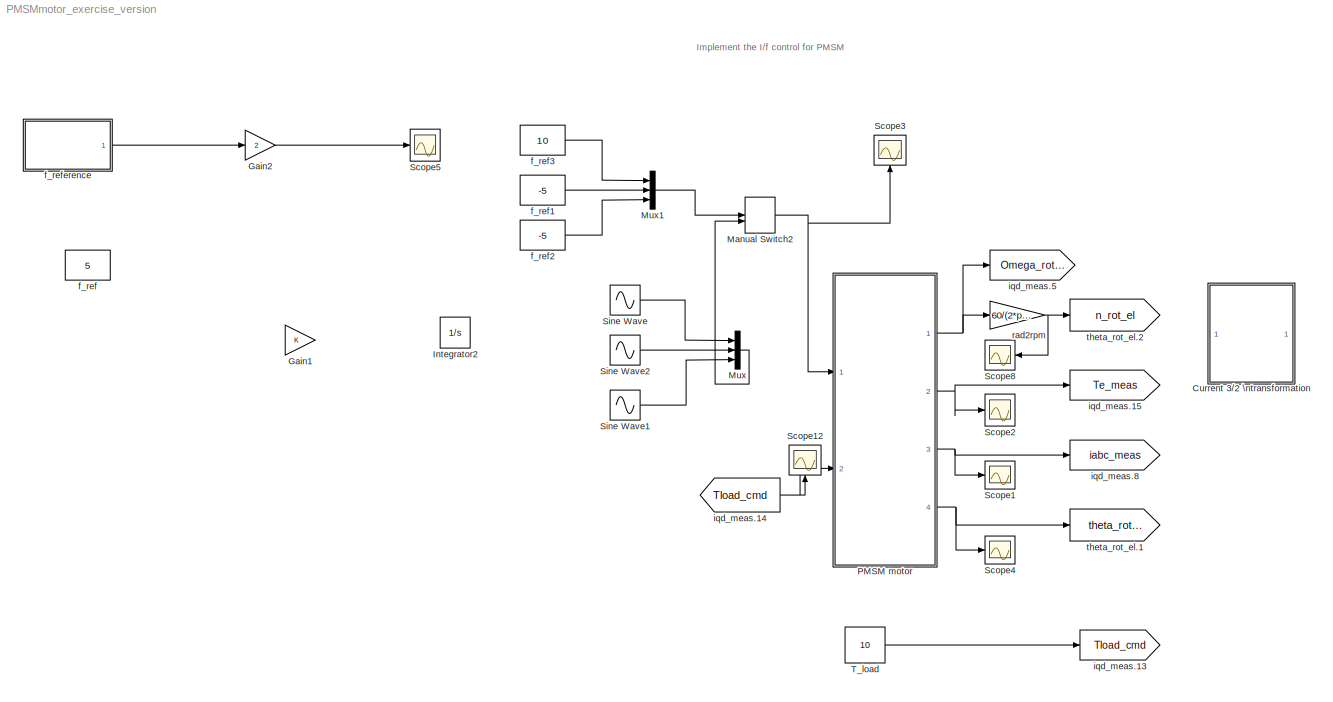
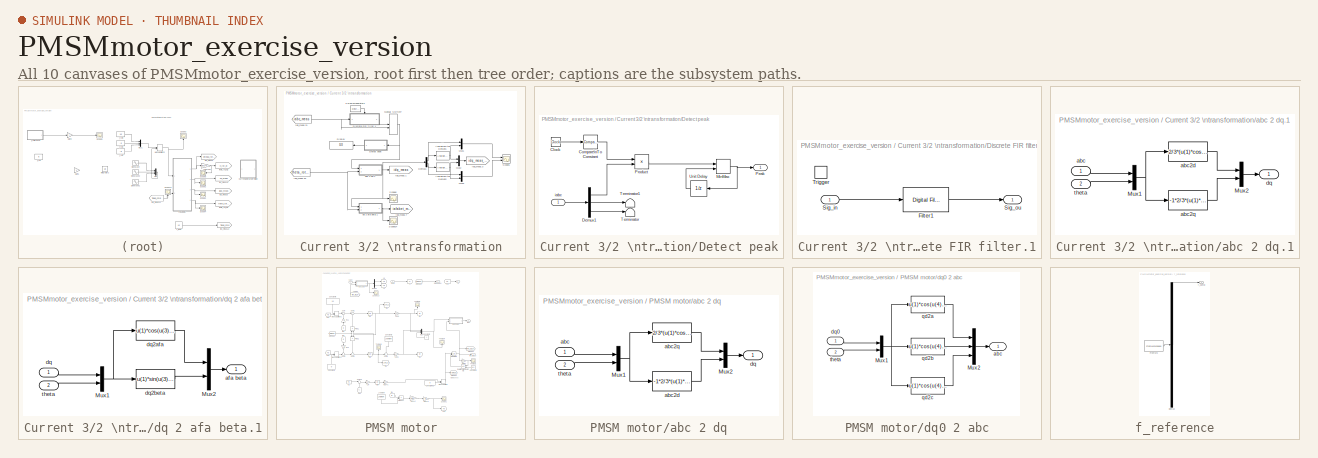
[diagram: thumbnail index - all 10 canvases of the model, root first then tree order]
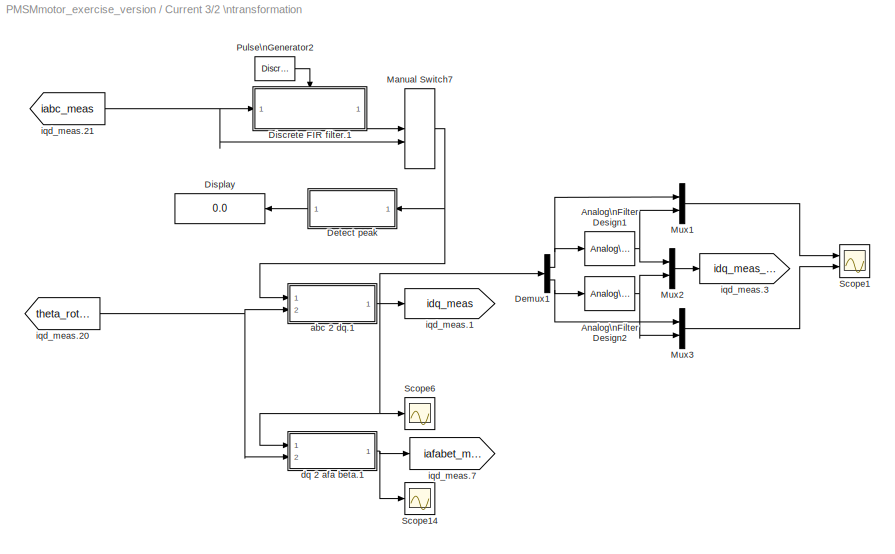
MODEL PMSMmotor_exercise_version
KIND model
CONFIG InitFcn = Motor_parameters_Lsrpm7fw
BLOCK [SubSystem] Current 3//2 \ntransformation
  FunctionWithSeparateData = off
  MaskHideContents = off
  MinAlgLoopOccurrences = off
  Opaque = off
  Ports = []
  PropExecContextOutsideSubsystem = off
  RTWSystemCode = Auto
  RequestExecContextInheritance = off
  SID = 7
BLOCK [Reference] Current 3//2 \ntransformation/Analog\nFilter Design1  REF=dsparch4/Analog\nFilter Design
  N = 5
  Ports = [1, 1]
  Rp = 2
  Rs = 40
  SID = 8
  SourceBlock = dsparch4/Analog\nFilter Design
  SourceType = Analog Filter Design
  Whi = 80
  Wlo = 2*pi*400
  filttype = Lowpass
  method = Butterworth
BLOCK [Reference] Current 3//2 \ntransformation/Analog\nFilter Design2  REF=dsparch4/Analog\nFilter Design
  N = 5
  Ports = [1, 1]
  Rp = 2
  Rs = 40
  SID = 9
  SourceBlock = dsparch4/Analog\nFilter Design
  SourceType = Analog Filter Design
  Whi = 80
  Wlo = 2*pi*400
  filttype = Lowpass
  method = Butterworth
BLOCK [Demux] Current 3//2 \ntransformation/Demux1
  DisplayOption = bar
  Outputs = 2
  Ports = [1, 2]
  SID = 10
BLOCK [SubSystem] Current 3//2 \ntransformation/Detect peak
  FunctionWithSeparateData = off
  MaskHideContents = off
  MinAlgLoopOccurrences = off
  Opaque = off
  Ports = [1, 1]
  PropExecContextOutsideSubsystem = off
  RTWSystemCode = Auto
  RequestExecContextInheritance = off
  SID = 11
BLOCK [Clock] Current 3//2 \ntransformation/Detect peak/Clock
  SID = 13
BLOCK [Reference] Current 3//2 \ntransformation/Detect peak/Compare\nTo Constant  REF=simulink/Logic and Bit\nOperations/Compare\nTo Constant
  OutDataTypeStr = uint8
  Ports = [1, 1]
  SID = 14
  SourceBlock = simulink/Logic and Bit\nOperations/Compare\nTo Constant
  SourceType = Compare To Constant
  ZeroCross = off
  const = 9.5
  relop = >=
BLOCK [Demux] Current 3//2 \ntransformation/Detect peak/Demux1
  DisplayOption = bar
  Outputs = 3
  Ports = [1, 3]
  SID = 15
BLOCK [MinMax] Current 3//2 \ntransformation/Detect peak/MinMax
  Function = max
  InputSameDT = off
  Inputs = 2
  Ports = [2, 1]
  SID = 16
  SaturateOnIntegerOverflow = off
BLOCK [Outport] Current 3//2 \ntransformation/Detect peak/Peak
  IconDisplay = Port number
  SID = 21
BLOCK [Product] Current 3//2 \ntransformation/Detect peak/Product
  InputSameDT = off
  OutDataTypeStr = Inherit: Inherit via internal rule
  Ports = [2, 1]
  SID = 17
  SaturateOnIntegerOverflow = off
BLOCK [Terminator] Current 3//2 \ntransformation/Detect peak/Terminator
  SID = 18
BLOCK [Terminator] Current 3//2 \ntransformation/Detect peak/Terminator1
  SID = 19
BLOCK [UnitDelay] Current 3//2 \ntransformation/Detect peak/Unit Delay
  SID = 20
  SampleTime = 1/5e3
BLOCK [Inport] Current 3//2 \ntransformation/Detect peak/iabc
  IconDisplay = Port number
  SID = 12
BLOCK [SubSystem] Current 3//2 \ntransformation/Discrete FIR filter.1
  FunctionWithSeparateData = off
  MaskHideContents = off
  MinAlgLoopOccurrences = off
  Opaque = off
  Ports = [1, 1, 0, 1]
  PropExecContextOutsideSubsystem = off
  RTWSystemCode = Auto
  RequestExecContextInheritance = off
  SID = 22
BLOCK [Reference] Current 3//2 \ntransformation/Discrete FIR filter.1/Filter1  REF=dsparch4/Digital Filter
  AllPoleFiltStruct = Direct form
  BiQuadCoeffs = [1 0.3 0.4 1 0.1 0.2]
  CoeffSource = Specify via dialog
  DenCoeffs = [1 0.1]
  FIRFiltStruct = Direct form
  FiltPerSampPopup = One filter per frame
  FilterSource = Specify via dialog
  IC = 0
  ICden = 0
  ICnum = 0
  IIRFiltStruct = Direct form II transposed
  InputProcessing = Inherited (this choice will be removed - see release notes)
  LatticeCoeffs = [0.2 0.4]
  LockScale = off
  NumCoeffs = [0.0129982054114534 -0.101337899103369 0.58834244300993 0.58834244300993 -0.101337899103369 0.0129982054114534]
  Ports = [1, 1]
  SID = 25
  ScaleValues = 1
  SourceBlock = dsparch4/Digital Filter
  SourceType = Digital Filter
  Tag = BlockMethodSubSystem
  TypePopup = FIR (all zeros)
  UserData = DataTag0
  UserDataPersistent = on
  accumFracLength = 30
  accumMode = Same as product output
  accumWordLength = 32
  additionalParams = off
  allowOverrides = on
  denIgnore = on
  dfiltObjectName = dfilt.dffir([1 2 1])
  firstCoeffFracLength = 15
  firstCoeffMode = Same word length as input
  firstCoeffWordLength = 16
  memoryFracLength = 15
  memoryMode = Same as accumulator
  memoryWordLength = 16
  multiplicandFracLength = 30
  multiplicandMode = Same as output
  multiplicandWordLength = 32
  outputFracLength = 15
  outputMode = Same as accumulator
  outputWordLength = 16
  overflowMode = off
  prodOutputFracLength = 30
  prodOutputMode = Same as input
  prodOutputWordLength = 32
  roundingMode = Floor
  scaleValueFracLength = 14
  secondCoeffFracLength = 15
  secondCoeffMode = Same as numerator
  secondCoeffWordLength = 16
  showAcc = off
  showCoeff = off
  showMem = off
  showMpy = off
  showOut = off
  stageIOMode = Same as input
  stageIOWordLength = 16
  stageInFracLength = 15
  stageOutFracLength = 15
  tapSumFracLength = 30
  tapSumMode = Same as input
  tapSumWordLength = 32
  thirdCoeffFracLength = 15
  thirdCoeffMode = Same as input
  thirdCoeffWordLength = 16
BLOCK [Inport] Current 3//2 \ntransformation/Discrete FIR filter.1/Sig_in
  IconDisplay = Port number
  SID = 23
BLOCK [Outport] Current 3//2 \ntransformation/Discrete FIR filter.1/Sig_ou
  IconDisplay = Port number
  SID = 26
BLOCK [TriggerPort] Current 3//2 \ntransformation/Discrete FIR filter.1/Trigger
  Ports = []
  SID = 24
  StatesWhenEnabling = held
BLOCK [Display] Current 3//2 \ntransformation/Display
  Decimation = 1
  Ports = [1]
  SID = 27
BLOCK [ManualSwitch] Current 3//2 \ntransformation/Manual Switch7
  CurrentSetting = 0
  SID = 28
BLOCK [Mux] Current 3//2 \ntransformation/Mux1
  DisplayOption = bar
  Inputs = 2
  Ports = [2, 1]
  SID = 29
BLOCK [Mux] Current 3//2 \ntransformation/Mux2
  DisplayOption = bar
  Inputs = 2
  Ports = [2, 1]
  SID = 30
BLOCK [Mux] Current 3//2 \ntransformation/Mux3
  DisplayOption = bar
  Inputs = 2
  Ports = [2, 1]
  SID = 31
BLOCK [DiscretePulseGenerator] Current 3//2 \ntransformation/Pulse\nGenerator2
  Period = 1/fs
  PhaseDelay = 1/fs/4*0
  Ports = [0, 1]
  PulseType = Time based
  PulseWidth = 50
  SID = 32
BLOCK [Scope] Current 3//2 \ntransformation/Scope1
  DataFormat = StructureWithTime
  Floating = off
  LimitDataPoints = off
  NumInputPorts = 2
  Ports = [2]
  SID = 33
  SampleTime = 0
  SaveName = ScopeData40
  ShowLegends = off
  YMax = 5500~5
  YMin = -5500~-5
  ZoomMode = xonly
BLOCK [Scope] Current 3//2 \ntransformation/Scope14
  DataFormat = StructureWithTime
  Floating = off
  LimitDataPoints = off
  NumInputPorts = 1
  Ports = [1]
  SID = 34
  SampleTime = 0
  SaveName = ScopeData27
  ShowLegends = off
  YMax = 5500
  YMin = -5500
BLOCK [Scope] Current 3//2 \ntransformation/Scope6
  DataFormat = StructureWithTime
  Floating = off
  LimitDataPoints = off
  NumInputPorts = 1
  Ports = [1]
  SID = 35
  SampleTime = 0
  SaveName = ScopeData25
  ShowLegends = off
  ZoomMode = xonly
BLOCK [SubSystem] Current 3//2 \ntransformation/abc 2 dq.1
  FunctionWithSeparateData = off
  MaskHideContents = off
  MinAlgLoopOccurrences = off
  Opaque = off
  Ports = [2, 1]
  PropExecContextOutsideSubsystem = off
  RTWSystemCode = Auto
  RequestExecContextInheritance = off
  SID = 38
BLOCK [Mux] Current 3//2 \ntransformation/abc 2 dq.1/Mux1
  DisplayOption = bar
  Inputs = 2
  Ports = [2, 1]
  SID = 41
BLOCK [Mux] Current 3//2 \ntransformation/abc 2 dq.1/Mux2
  DisplayOption = bar
  Inputs = 2
  Ports = [2, 1]
  SID = 42
BLOCK [Inport] Current 3//2 \ntransformation/abc 2 dq.1/abc
  IconDisplay = Port number
  SID = 39
BLOCK [Fcn] Current 3//2 \ntransformation/abc 2 dq.1/abc2d
  Expr = 2/3*(u(1)*cos(u(4))+u(2)*cos(u(4)-2*pi/3)+u(3)*cos(u(4)-4*pi/3))
  SID = 43
BLOCK [Fcn] Current 3//2 \ntransformation/abc 2 dq.1/abc2q
  Expr = -1*2/3*(u(1)*sin(u(4))+u(2)*sin(u(4)-2*pi/3)+u(3)*sin(u(4)-4*pi/3))
  SID = 44
BLOCK [Outport] Current 3//2 \ntransformation/abc 2 dq.1/dq
  IconDisplay = Port number
  SID = 45
BLOCK [Inport] Current 3//2 \ntransformation/abc 2 dq.1/theta
  IconDisplay = Port number
  Port = 2
  SID = 40
BLOCK [SubSystem] Current 3//2 \ntransformation/dq 2 afa beta.1
  FunctionWithSeparateData = off
  MaskHideContents = off
  MinAlgLoopOccurrences = off
  Opaque = off
  Ports = [2, 1]
  PropExecContextOutsideSubsystem = off
  RTWSystemCode = Auto
  RequestExecContextInheritance = off
  SID = 46
BLOCK [Mux] Current 3//2 \ntransformation/dq 2 afa beta.1/Mux1
  DisplayOption = bar
  Inputs = 2
  Ports = [2, 1]
  SID = 49
BLOCK [Mux] Current 3//2 \ntransformation/dq 2 afa beta.1/Mux2
  DisplayOption = bar
  Inputs = 2
  Ports = [2, 1]
  SID = 50
BLOCK [Outport] Current 3//2 \ntransformation/dq 2 afa beta.1/afa beta
  IconDisplay = Port number
  SID = 53
BLOCK [Inport] Current 3//2 \ntransformation/dq 2 afa beta.1/dq
  IconDisplay = Port number
  SID = 47
BLOCK [Fcn] Current 3//2 \ntransformation/dq 2 afa beta.1/dq2afa
  Expr = u(1)*cos(u(3))-u(2)*sin(u(3))
  SID = 51
BLOCK [Fcn] Current 3//2 \ntransformation/dq 2 afa beta.1/dq2beta
  Expr = u(1)*sin(u(3))+u(2)*cos(u(3))
  SID = 52
BLOCK [Inport] Current 3//2 \ntransformation/dq 2 afa beta.1/theta
  IconDisplay = Port number
  Port = 2
  SID = 48
BLOCK [Goto] Current 3//2 \ntransformation/iqd_meas.1
  GotoTag = idq_meas
  SID = 54
  TagVisibility = global
BLOCK [From] Current 3//2 \ntransformation/iqd_meas.20
  CloseFcn = tagdialog Close
  GotoTag = theta_rot_el
  SID = 55
  TagVisibility = global
BLOCK [From] Current 3//2 \ntransformation/iqd_meas.21
  CloseFcn = tagdialog Close
  GotoTag = iabc_meas
  SID = 56
  TagVisibility = global
BLOCK [Goto] Current 3//2 \ntransformation/iqd_meas.3
  GotoTag = idq_meas_fil
  SID = 57
  TagVisibility = global
BLOCK [Goto] Current 3//2 \ntransformation/iqd_meas.7
  GotoTag = iafabet_meas
  SID = 58
  TagVisibility = global
BLOCK [Gain] Gain1
  OutDataTypeStr = Inherit: Inherit via internal rule
  ParamDataTypeStr = Inherit: Inherit via internal rule
  SID = 6258
  SaturateOnIntegerOverflow = off
BLOCK [Gain] Gain2
  Gain = 2
  OutDataTypeStr = Inherit: Inherit via internal rule
  ParamDataTypeStr = Inherit: Inherit via internal rule
  SID = 6259
  SaturateOnIntegerOverflow = off
BLOCK [Integrator] Integrator2
  ExternalReset = rising
  LimitOutput = on
  Ports = [2, 1]
  SID = 6267
  UpperSaturationLimit = 2
BLOCK [ManualSwitch] Manual Switch2
  SID = 6251
BLOCK [Mux] Mux
  DisplayOption = bar
  Inputs = 3
  Ports = [3, 1]
  SID = 6211
BLOCK [Mux] Mux1
  DisplayOption = bar
  Inputs = 3
  Ports = [3, 1]
  SID = 6255
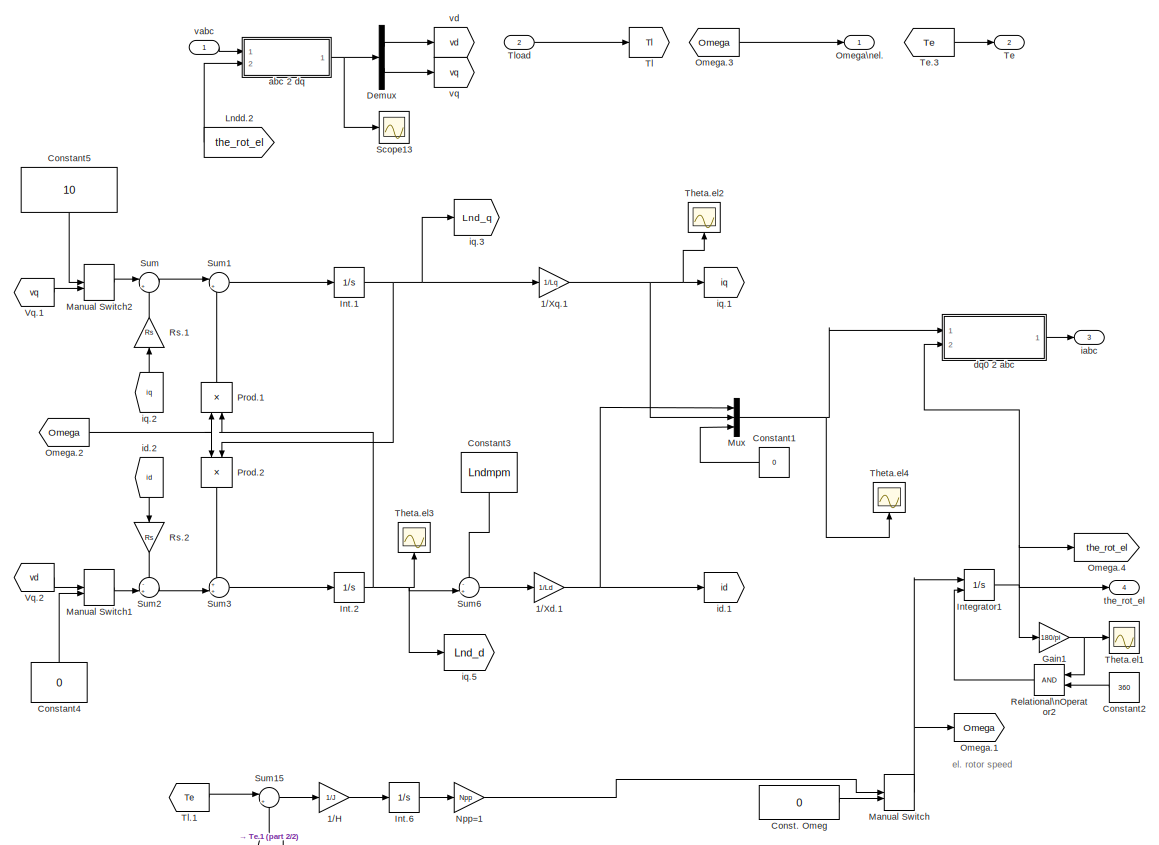
[diagram: PMSM motor - part 1/2, most of the canvas]
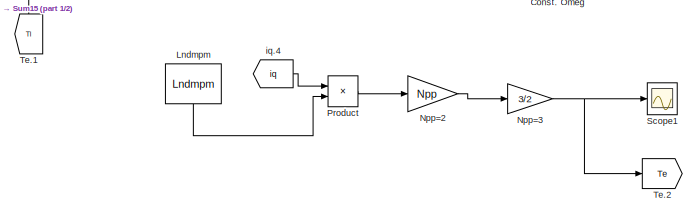
[diagram: PMSM motor - part 2/2, bottom center region]
BLOCK [SubSystem] PMSM motor
  FunctionWithSeparateData = off
  MaskHideContents = off
  MinAlgLoopOccurrences = off
  Opaque = off
  Ports = [2, 4]
  PropExecContextOutsideSubsystem = off
  RTWSystemCode = Auto
  RequestExecContextInheritance = off
  SID = 95
BLOCK [Gain] PMSM motor/1//H
  Gain = 1/J
  OutDataTypeStr = Inherit: Inherit via internal rule
  ParamDataTypeStr = Inherit: Inherit via internal rule
  SID = 6197
  SaturateOnIntegerOverflow = off
BLOCK [Gain] PMSM motor/1//Xd.1
  Gain = 1/Ld
  OutDataTypeStr = Inherit: Inherit via internal rule
  ParamDataTypeStr = Inherit: Inherit via internal rule
  SID = 6143
  SaturateOnIntegerOverflow = off
BLOCK [Gain] PMSM motor/1//Xq.1
  Gain = 1/Lq
  OutDataTypeStr = Inherit: Inherit via internal rule
  ParamDataTypeStr = Inherit: Inherit via internal rule
  SID = 6144
  SaturateOnIntegerOverflow = off
BLOCK [Constant] PMSM motor/Const. Omeg
  SID = 103
  Value = 0
BLOCK [Constant] PMSM motor/Constant1
  SID = 6213
  Value = 0
BLOCK [Constant] PMSM motor/Constant2
  SID = 104
  Value = 360
BLOCK [Constant] PMSM motor/Constant3
  SID = 6222
  Value = Lndmpm
BLOCK [Constant] PMSM motor/Constant4
  SID = 6242
  Value = 0
BLOCK [Constant] PMSM motor/Constant5
  SID = 6244
  Value = 10
BLOCK [Demux] PMSM motor/Demux
  DisplayOption = bar
  Outputs = 2
  Ports = [1, 2]
  SID = 105
BLOCK [Gain] PMSM motor/Gain1
  Gain = 180/pi
  OutDataTypeStr = Inherit: Inherit via internal rule
  ParamDataTypeStr = Inherit: Inherit via internal rule
  SID = 106
  SaturateOnIntegerOverflow = off
BLOCK [Integrator] PMSM motor/Int.1
  Ports = [1, 1]
  SID = 6145
BLOCK [Integrator] PMSM motor/Int.2
  InitialCondition = Lndd_ini
  Ports = [1, 1]
  SID = 6146
BLOCK [Integrator] PMSM motor/Int.6
  InitialCondition = 1
  Ports = [1, 1]
  SID = 6198
BLOCK [Integrator] PMSM motor/Integrator1
  ExternalReset = rising
  Ports = [2, 1]
  SID = 110
BLOCK [From] PMSM motor/Lndd.2
  CloseFcn = tagdialog Close
  GotoTag = the_rot_el
  SID = 113
BLOCK [Constant] PMSM motor/Lndmpm
  SID = 6233
  Value = Lndmpm
BLOCK [ManualSwitch] PMSM motor/Manual Switch
  CurrentSetting = 0
  SID = 116
BLOCK [ManualSwitch] PMSM motor/Manual Switch1
  SID = 6241
BLOCK [ManualSwitch] PMSM motor/Manual Switch2
  CurrentSetting = 0
  SID = 6243
BLOCK [Mux] PMSM motor/Mux
  DisplayOption = bar
  Inputs = 3
  Ports = [3, 1]
  SID = 6149
BLOCK [Gain] PMSM motor/Npp=1
  Gain = Npp
  OutDataTypeStr = Inherit: Inherit via internal rule
  ParamDataTypeStr = Inherit: Inherit via internal rule
  SID = 6199
  SaturateOnIntegerOverflow = off
BLOCK [Gain] PMSM motor/Npp=2
  Gain = Npp
  OutDataTypeStr = Inherit: Inherit via internal rule
  ParamDataTypeStr = Inherit: Inherit via internal rule
  SID = 6235
  SaturateOnIntegerOverflow = off
BLOCK [Gain] PMSM motor/Npp=3
  Gain = 3/2
  OutDataTypeStr = Inherit: Inherit via internal rule
  ParamDataTypeStr = Inherit: Inherit via internal rule
  SID = 6237
  SaturateOnIntegerOverflow = off
BLOCK [Goto] PMSM motor/Omega.1
  GotoTag = Omega
  SID = 120
BLOCK [From] PMSM motor/Omega.2
  CloseFcn = tagdialog Close
  GotoTag = Omega
  SID = 6150
BLOCK [From] PMSM motor/Omega.3
  CloseFcn = tagdialog Close
  GotoTag = Omega
  SID = 122
BLOCK [Goto] PMSM motor/Omega.4
  GotoTag = the_rot_el
  SID = 123
BLOCK [Outport] PMSM motor/Omega\nel.
  IconDisplay = Port number
  SID = 178
BLOCK [Product] PMSM motor/Prod.1
  InputSameDT = off
  OutDataTypeStr = Inherit: Inherit via internal rule
  Ports = [2, 1]
  SID = 6153
  SaturateOnIntegerOverflow = off
BLOCK [Product] PMSM motor/Prod.2
  InputSameDT = off
  OutDataTypeStr = Inherit: Inherit via internal rule
  Ports = [2, 1]
  SID = 6154
  SaturateOnIntegerOverflow = off
BLOCK [Product] PMSM motor/Product
  InputSameDT = off
  OutDataTypeStr = Inherit: Inherit via internal rule
  Ports = [2, 1]
  SID = 6226
  SaturateOnIntegerOverflow = off
BLOCK [RelationalOperator] PMSM motor/Relational\nOperator2
  InputSameDT = off
  OutDataTypeStr = boolean
  Ports = [2, 1]
  SID = 128
BLOCK [Gain] PMSM motor/Rs.1
  Gain = Rs
  OutDataTypeStr = Inherit: Inherit via internal rule
  ParamDataTypeStr = Inherit: Inherit via internal rule
  SID = 6155
  SaturateOnIntegerOverflow = off
BLOCK [Gain] PMSM motor/Rs.2
  Gain = Rs
  OutDataTypeStr = Inherit: Inherit via internal rule
  ParamDataTypeStr = Inherit: Inherit via internal rule
  SID = 6156
  SaturateOnIntegerOverflow = off
BLOCK [Scope] PMSM motor/Scope1
  DataFormat = StructureWithTime
  Floating = off
  LimitDataPoints = off
  NumInputPorts = 1
  Ports = [1]
  SID = 6239
  SampleTime = 0
  SaveName = ScopeData3
  ShowLegends = off
  TimeRange = 2
  YMax = 21
  YMin = -1
  ZoomMode = yonly
BLOCK [Scope] PMSM motor/Scope13
  DataFormat = StructureWithTime
  Floating = off
  LimitDataPoints = off
  NumInputPorts = 1
  Ports = [1]
  SID = 133
  SampleTime = 0
  SaveName = ScopeData24
  ShowLegends = off
  TimeRange = 2
  YMax = 21
  YMin = -1
  ZoomMode = xonly
BLOCK [Sum] PMSM motor/Sum
  IconShape = round
  InputSameDT = off
  Inputs = |+-
  OutDataTypeStr = Inherit: Inherit via internal rule
  Ports = [2, 1]
  SID = 6160
  SaturateOnIntegerOverflow = off
BLOCK [Sum] PMSM motor/Sum1
  IconShape = round
  InputSameDT = off
  Inputs = |+-
  OutDataTypeStr = Inherit: Inherit via internal rule
  Ports = [2, 1]
  SID = 6161
  SaturateOnIntegerOverflow = off
BLOCK [Sum] PMSM motor/Sum15
  IconShape = round
  InputSameDT = off
  Inputs = |+-
  OutDataTypeStr = Inherit: Inherit via internal rule
  Ports = [2, 1]
  SID = 6202
  SaturateOnIntegerOverflow = off
BLOCK [Sum] PMSM motor/Sum2
  IconShape = round
  InputSameDT = off
  Inputs = -+|
  OutDataTypeStr = Inherit: Inherit via internal rule
  Ports = [2, 1]
  SID = 6162
  SaturateOnIntegerOverflow = off
BLOCK [Sum] PMSM motor/Sum3
  IconShape = round
  InputSameDT = off
  Inputs = ++|
  OutDataTypeStr = Inherit: Inherit via internal rule
  Ports = [2, 1]
  SID = 6163
  SaturateOnIntegerOverflow = off
BLOCK [Sum] PMSM motor/Sum6
  IconShape = round
  InputSameDT = off
  Inputs = -+|
  OutDataTypeStr = Inherit: Inherit via internal rule
  Ports = [2, 1]
  SID = 6221
  SaturateOnIntegerOverflow = off
BLOCK [Outport] PMSM motor/Te
  IconDisplay = Port number
  Port = 2
  SID = 179
BLOCK [From] PMSM motor/Te.1
  CloseFcn = tagdialog Close
  GotoTag = Tl
  SID = 6203
BLOCK [Goto] PMSM motor/Te.2
  GotoTag = Te
  SID = 6228
BLOCK [From] PMSM motor/Te.3
  CloseFcn = tagdialog Close
  GotoTag = Te
  SID = 144
BLOCK [Scope] PMSM motor/Theta.el1
  DataFormat = StructureWithTime
  Floating = off
  NumInputPorts = 1
  Ports = [1]
  SID = 145
  SampleTime = 0
  ShowLegends = off
  YMax = 225
  YMin = -225
BLOCK [Scope] PMSM motor/Theta.el2
  DataFormat = StructureWithTime
  Floating = off
  LimitDataPoints = off
  NumInputPorts = 1
  Ports = [1]
  SID = 6250
  SampleTime = 0
  SaveName = ScopeData5
  ShowLegends = off
  YMax = 225
  YMin = -225
  ZoomMode = yonly
BLOCK [Scope] PMSM motor/Theta.el3
  DataFormat = StructureWithTime
  Floating = off
  NumInputPorts = 1
  Ports = [1]
  SID = 6248
  SampleTime = 0
  SaveName = ScopeData6
  ShowLegends = off
  YMax = 225
  YMin = -225
  ZoomMode = xonly
BLOCK [Scope] PMSM motor/Theta.el4
  DataFormat = StructureWithTime
  Floating = off
  LimitDataPoints = off
  NumInputPorts = 1
  Ports = [1]
  SID = 6256
  SampleTime = 0
  SaveName = ScopeData7
  ShowLegends = off
  YMax = 225
  YMin = -225
  ZoomMode = xonly
BLOCK [Goto] PMSM motor/Tl
  GotoTag = Tl
  SID = 146
BLOCK [From] PMSM motor/Tl.1
  CloseFcn = tagdialog Close
  GotoTag = Te
  SID = 6204
BLOCK [Inport] PMSM motor/Tload
  IconDisplay = Port number
  Port = 2
  SID = 97
BLOCK [From] PMSM motor/Vq.1
  CloseFcn = tagdialog Close
  GotoTag = vq
  SID = 6168
BLOCK [From] PMSM motor/Vq.2
  CloseFcn = tagdialog Close
  GotoTag = vd
  SID = 6240
BLOCK [SubSystem] PMSM motor/abc 2 dq
  FunctionWithSeparateData = off
  MaskHideContents = off
  MinAlgLoopOccurrences = off
  Opaque = off
  Ports = [2, 1]
  PropExecContextOutsideSubsystem = off
  RTWSystemCode = Auto
  RequestExecContextInheritance = off
  SID = 152
BLOCK [Mux] PMSM motor/abc 2 dq/Mux1
  DisplayOption = bar
  Inputs = 2
  Ports = [2, 1]
  SID = 155
BLOCK [Mux] PMSM motor/abc 2 dq/Mux2
  DisplayOption = bar
  Inputs = 2
  Ports = [2, 1]
  SID = 156
BLOCK [Inport] PMSM motor/abc 2 dq/abc
  IconDisplay = Port number
  SID = 153
BLOCK [Fcn] PMSM motor/abc 2 dq/abc2d
  Expr = -1*2/3*(u(1)*sin(u(4))+u(2)*sin(u(4)-2*pi/3)+u(3)*sin(u(4)-4*pi/3))
  SID = 157
BLOCK [Fcn] PMSM motor/abc 2 dq/abc2q
  Expr = 2/3*(u(1)*cos(u(4))+u(2)*cos(u(4)-2*pi/3)+u(3)*cos(u(4)-4*pi/3))
  SID = 158
BLOCK [Outport] PMSM motor/abc 2 dq/dq
  IconDisplay = Port number
  SID = 159
BLOCK [Inport] PMSM motor/abc 2 dq/theta
  IconDisplay = Port number
  Port = 2
  SID = 154
BLOCK [SubSystem] PMSM motor/dq0 2 abc
  FunctionWithSeparateData = off
  MaskHideContents = off
  MinAlgLoopOccurrences = off
  Opaque = off
  Ports = [2, 1]
  PropExecContextOutsideSubsystem = off
  RTWSystemCode = Auto
  RequestExecContextInheritance = off
  SID = 160
BLOCK [Mux] PMSM motor/dq0 2 abc/Mux1
  DisplayOption = bar
  Inputs = 2
  Ports = [2, 1]
  SID = 163
BLOCK [Mux] PMSM motor/dq0 2 abc/Mux2
  DisplayOption = bar
  Inputs = 3
  Ports = [3, 1]
  SID = 164
BLOCK [Outport] PMSM motor/dq0 2 abc/abc
  IconDisplay = Port number
  SID = 168
BLOCK [Inport] PMSM motor/dq0 2 abc/dq0
  IconDisplay = Port number
  SID = 161
BLOCK [Fcn] PMSM motor/dq0 2 abc/qd2a
  Expr = u(1)*cos(u(4))-u(2)*sin(u(4))+u(3)
  SID = 165
BLOCK [Fcn] PMSM motor/dq0 2 abc/qd2b
  Expr = u(1)*cos(u(4)-2/3*pi)-u(2)*sin(u(4)-2/3*pi)+u(3)
  SID = 166
BLOCK [Fcn] PMSM motor/dq0 2 abc/qd2c
  Expr = u(1)*cos(u(4)+2/3*pi)-u(2)*sin(u(4)+2/3*pi)+u(3)
  SID = 167
BLOCK [Inport] PMSM motor/dq0 2 abc/theta
  IconDisplay = Port number
  Port = 2
  SID = 162
BLOCK [Outport] PMSM motor/iabc
  IconDisplay = Port number
  Port = 3
  SID = 180
BLOCK [Goto] PMSM motor/id.1
  GotoTag = id
  SID = 6172
BLOCK [From] PMSM motor/id.2
  CloseFcn = tagdialog Close
  GotoTag = id
  SID = 6173
BLOCK [Goto] PMSM motor/iq.1
  GotoTag = iq
  SID = 6177
BLOCK [From] PMSM motor/iq.2
  CloseFcn = tagdialog Close
  GotoTag = iq
  SID = 6178
BLOCK [Goto] PMSM motor/iq.3
  GotoTag = Lnd_q
  SID = 6231
BLOCK [From] PMSM motor/iq.4
  CloseFcn = tagdialog Close
  GotoTag = iq
  SID = 6230
BLOCK [Goto] PMSM motor/iq.5
  GotoTag = Lnd_d
  SID = 6232
BLOCK [Outport] PMSM motor/the_rot_el
  IconDisplay = Port number
  Port = 4
  SID = 181
BLOCK [Inport] PMSM motor/vabc
  IconDisplay = Port number
  SID = 96
BLOCK [Goto] PMSM motor/vd
  GotoTag = vd
  SID = 176
BLOCK [Goto] PMSM motor/vq
  GotoTag = vq
  SID = 177
BLOCK [Scope] Scope1
  DataFormat = StructureWithTime
  Floating = off
  LimitDataPoints = off
  NumInputPorts = 1
  Ports = [1]
  SID = 820
  SampleTime = 0
  SaveName = ScopeData22
  ShowLegends = off
  TimeRange = 0.09507640067911714
  YMax = 7e+51
  YMin = -4e+51
  ZoomMode = xonly
BLOCK [Scope] Scope12
  DataFormat = StructureWithTime
  Floating = off
  LimitDataPoints = off
  NumInputPorts = 1
  Ports = [1]
  SID = 823
  SampleTime = 0
  SaveName = ScopeData16
  ShowLegends = off
  YMax = 1.2
  YMin = 0.1
  ZoomMode = yonly
BLOCK [Scope] Scope2
  DataFormat = StructureWithTime
  Floating = off
  LimitDataPoints = off
  NumInputPorts = 1
  Ports = [1]
  SID = 824
  SampleTime = 0
  SaveName = ScopeData4
  ShowLegends = off
  TimeRange = 3
  YMax = 80
  YMin = -10
  ZoomMode = xonly
BLOCK [Scope] Scope3
  DataFormat = StructureWithTime
  Floating = off
  LimitDataPoints = off
  NumInputPorts = 1
  Ports = [1]
  SID = 6214
  SampleTime = 0
  SaveName = ScopeData2
  ShowLegends = off
  YMax = 1.2
  YMin = 0.1
  ZoomMode = xonly
BLOCK [Scope] Scope4
  DataFormat = StructureWithTime
  Floating = off
  LimitDataPoints = off
  NumInputPorts = 1
  Ports = [1]
  SID = 6077
  SampleTime = 0
  SaveName = ScopeData1
  ShowLegends = off
  TimeRange = 0.09507640067911714
  YMax = 6.25
  YMin = 3
  ZoomMode = xonly
BLOCK [Scope] Scope5
  DataFormat = StructureWithTime
  Floating = off
  LimitDataPoints = off
  NumInputPorts = 1
  Ports = [1]
  SID = 6260
  SampleTime = 0
  SaveName = ScopeData8
  ShowLegends = off
  TimeRange = 2
  YMax = 13
  YMin = 1
  ZoomMode = xonly
BLOCK [Scope] Scope8
  DataFormat = StructureWithTime
  Floating = off
  LimitDataPoints = off
  NumInputPorts = 1
  Ports = [1]
  SID = 6135
  SampleTime = 0
  SaveName = ScopeData23
  ShowLegends = off
  TimeRange = 0.09507640067911714
  YMax = 315
  YMin = 285
  ZoomMode = xonly
BLOCK [Sin] Sine Wave
  Amplitude = 20
  Frequency = Omegae
  Phase = pi/2
  Ports = [0, 1]
  SID = 6208
  SampleTime = 0
BLOCK [Sin] Sine Wave1
  Amplitude = 20
  Frequency = Omegae
  Phase = pi/2+2*pi/3
  Ports = [0, 1]
  SID = 6209
  SampleTime = 0
BLOCK [Sin] Sine Wave2
  Amplitude = 20
  Frequency = Omegae
  Phase = pi/2-2*pi/3
  Ports = [0, 1]
  SID = 6210
  SampleTime = 0
BLOCK [Constant] T_load
  SID = 6105
  Value = 10
BLOCK [Constant] f_ref
  SID = 6127
  Value = 5
BLOCK [Constant] f_ref1
  SID = 6252
  Value = -5
BLOCK [Constant] f_ref2
  SID = 6253
  Value = -5
BLOCK [Constant] f_ref3
  SID = 6254
  Value = 10
BLOCK [SubSystem] f_reference
  ClipboardFcn = sigbuilder_block('clipboard');
  CloseFcn = sigbuilder_block('close');
  ContinueFcn = sigbuilder_block('continue');
  CopyFcn = sigbuilder_block('copy');
  DeleteFcn = sigbuilder_block('delete');
  FunctionWithSeparateData = off
  LoadFcn = sigbuilder_block('load');
  MaskHideContents = on
  MinAlgLoopOccurrences = off
  ModelCloseFcn = sigbuilder_block('modelClose');
  NameChangeFcn = sigbuilder_block('namechange');
  Opaque = off
  OpenFcn = sigbuilder_block('open',[436.966 199.862 550.552 399.724 ]);
  PauseFcn = sigbuilder_block('pause');
  Ports = [0, 1]
  PreSaveFcn = sigbuilder_block('preSave');
  PropExecContextOutsideSubsystem = off
  RTWSystemCode = Auto
  RequestExecContextInheritance = off
  SID = 6064
  StartFcn = sigbuilder_block('start');
  StopFcn = sigbuilder_block('stop');
  Tag = STV Subsys
BLOCK [Demux] f_reference/Demux
  Outputs = 1
  Ports = [1, 1]
  SID = 6064:1
  Tag = STV Demux
BLOCK [FromWorkspace] f_reference/FromWs
  SID = 6064:2
  SampleTime = 0
  SigBuilderData = DataTag1
  Tag = STV FromWs
  VariableName = tuvar
  VnvData = DataTag2
  ZeroCross = on
BLOCK [Outport] f_reference/f_comd
  IconDisplay = Port number
  SID = 6064:4
  Tag = STV Outport
BLOCK [Goto] iqd_meas.13
  GotoTag = Tload_cmd
  SID = 939
BLOCK [From] iqd_meas.14
  CloseFcn = tagdialog Close
  GotoTag = Tload_cmd
  SID = 940
BLOCK [Goto] iqd_meas.15
  GotoTag = Te_meas
  SID = 941
BLOCK [Goto] iqd_meas.5
  GotoTag = Omega_rot_el
  SID = 954
BLOCK [Goto] iqd_meas.8
  GotoTag = iabc_meas
  SID = 957
  TagVisibility = global
BLOCK [Gain] rad2rpm
  Gain = 60/(2*pi)
  OutDataTypeStr = Inherit: Inherit via internal rule
  ParamDataTypeStr = Inherit: Inherit via internal rule
  SID = 964
  SaturateOnIntegerOverflow = off
BLOCK [Goto] theta_rot_el.1
  GotoTag = theta_rot_el
  SID = 965
  TagVisibility = global
BLOCK [Goto] theta_rot_el.2
  GotoTag = n_rot_el
  SID = 966
ANNOTATION (root): Implement the I/f control for PMSM
ANNOTATION PMSM motor: el. rotor speed
NET Current 3//2 \ntransformation/Analog\nFilter Design1:1 -> Current 3//2 \ntransformation/Mux1:2, Current 3//2 \ntransformation/Mux2:1
NET Current 3//2 \ntransformation/Analog\nFilter Design2:1 -> Current 3//2 \ntransformation/Mux2:2, Current 3//2 \ntransformation/Mux3:2
NET Current 3//2 \ntransformation/Demux1:1 -> Current 3//2 \ntransformation/Analog\nFilter Design1:1, Current 3//2 \ntransformation/Mux1:1
NET Current 3//2 \ntransformation/Demux1:2 -> Current 3//2 \ntransformation/Analog\nFilter Design2:1, Current 3//2 \ntransformation/Mux3:1
LINE Current 3//2 \ntransformation/Detect peak/Clock:1 -> Current 3//2 \ntransformation/Detect peak/Compare\nTo Constant:1
LINE Current 3//2 \ntransformation/Detect peak/Compare\nTo Constant:1 -> Current 3//2 \ntransformation/Detect peak/Product:1
LINE Current 3//2 \ntransformation/Detect peak/Demux1:1 -> Current 3//2 \ntransformation/Detect peak/Product:2
LINE Current 3//2 \ntransformation/Detect peak/Demux1:2 -> Current 3//2 \ntransformation/Detect peak/Terminator1:1
LINE Current 3//2 \ntransformation/Detect peak/Demux1:3 -> Current 3//2 \ntransformation/Detect peak/Terminator:1
NET Current 3//2 \ntransformation/Detect peak/MinMax:1 -> Current 3//2 \ntransformation/Detect peak/Peak:1, Current 3//2 \ntransformation/Detect peak/Unit Delay:1
LINE Current 3//2 \ntransformation/Detect peak/Product:1 -> Current 3//2 \ntransformation/Detect peak/MinMax:1
LINE Current 3//2 \ntransformation/Detect peak/Unit Delay:1 -> Current 3//2 \ntransformation/Detect peak/MinMax:2
LINE Current 3//2 \ntransformation/Detect peak/iabc:1 -> Current 3//2 \ntransformation/Detect peak/Demux1:1
LINE Current 3//2 \ntransformation/Detect peak:1 -> Current 3//2 \ntransformation/Display:1
LINE Current 3//2 \ntransformation/Discrete FIR filter.1/Filter1:1 -> Current 3//2 \ntransformation/Discrete FIR filter.1/Sig_ou:1
LINE Current 3//2 \ntransformation/Discrete FIR filter.1/Sig_in:1 -> Current 3//2 \ntransformation/Discrete FIR filter.1/Filter1:1
LINE Current 3//2 \ntransformation/Discrete FIR filter.1:1 -> Current 3//2 \ntransformation/Manual Switch7:1
NET Current 3//2 \ntransformation/Manual Switch7:1 -> Current 3//2 \ntransformation/Detect peak:1, Current 3//2 \ntransformation/abc 2 dq.1:1
LINE Current 3//2 \ntransformation/Mux1:1 -> Current 3//2 \ntransformation/Scope1:1
LINE Current 3//2 \ntransformation/Mux2:1 -> Current 3//2 \ntransformation/iqd_meas.3:1
LINE Current 3//2 \ntransformation/Mux3:1 -> Current 3//2 \ntransformation/Scope1:2
LINE Current 3//2 \ntransformation/Pulse\nGenerator2:1 -> Current 3//2 \ntransformation/Discrete FIR filter.1:trigger
NET Current 3//2 \ntransformation/abc 2 dq.1/Mux1:1 -> Current 3//2 \ntransformation/abc 2 dq.1/abc2d:1, Current 3//2 \ntransformation/abc 2 dq.1/abc2q:1
LINE Current 3//2 \ntransformation/abc 2 dq.1/Mux2:1 -> Current 3//2 \ntransformation/abc 2 dq.1/dq:1
LINE Current 3//2 \ntransformation/abc 2 dq.1/abc2d:1 -> Current 3//2 \ntransformation/abc 2 dq.1/Mux2:1
LINE Current 3//2 \ntransformation/abc 2 dq.1/abc2q:1 -> Current 3//2 \ntransformation/abc 2 dq.1/Mux2:2
LINE Current 3//2 \ntransformation/abc 2 dq.1/abc:1 -> Current 3//2 \ntransformation/abc 2 dq.1/Mux1:1
LINE Current 3//2 \ntransformation/abc 2 dq.1/theta:1 -> Current 3//2 \ntransformation/abc 2 dq.1/Mux1:2
NET Current 3//2 \ntransformation/abc 2 dq.1:1 -> Current 3//2 \ntransformation/Demux1:1, Current 3//2 \ntransformation/Scope6:1, Current 3//2 \ntransformation/dq 2 afa beta.1:1, Current 3//2 \ntransformation/iqd_meas.1:1
NET Current 3//2 \ntransformation/dq 2 afa beta.1/Mux1:1 -> Current 3//2 \ntransformation/dq 2 afa beta.1/dq2afa:1, Current 3//2 \ntransformation/dq 2 afa beta.1/dq2beta:1
LINE Current 3//2 \ntransformation/dq 2 afa beta.1/Mux2:1 -> Current 3//2 \ntransformation/dq 2 afa beta.1/afa beta:1
LINE Current 3//2 \ntransformation/dq 2 afa beta.1/dq2afa:1 -> Current 3//2 \ntransformation/dq 2 afa beta.1/Mux2:1
LINE Current 3//2 \ntransformation/dq 2 afa beta.1/dq2beta:1 -> Current 3//2 \ntransformation/dq 2 afa beta.1/Mux2:2
LINE Current 3//2 \ntransformation/dq 2 afa beta.1/dq:1 -> Current 3//2 \ntransformation/dq 2 afa beta.1/Mux1:1
LINE Current 3//2 \ntransformation/dq 2 afa beta.1/theta:1 -> Current 3//2 \ntransformation/dq 2 afa beta.1/Mux1:2
NET Current 3//2 \ntransformation/dq 2 afa beta.1:1 -> Current 3//2 \ntransformation/Scope14:1, Current 3//2 \ntransformation/iqd_meas.7:1
NET Current 3//2 \ntransformation/iqd_meas.20:1 -> Current 3//2 \ntransformation/abc 2 dq.1:2, Current 3//2 \ntransformation/dq 2 afa beta.1:2
NET Current 3//2 \ntransformation/iqd_meas.21:1 -> Current 3//2 \ntransformation/Discrete FIR filter.1:1, Current 3//2 \ntransformation/Manual Switch7:2
LINE Gain2:1 -> Scope5:1
NET Manual Switch2:1 -> PMSM motor:1, Scope3:1
LINE Mux1:1 -> Manual Switch2:1
LINE Mux:1 -> Manual Switch2:2
LINE PMSM motor/1//H:1 -> PMSM motor/Int.6:1
NET PMSM motor/1//Xd.1:1 -> PMSM motor/Mux:1, PMSM motor/id.1:1
NET PMSM motor/1//Xq.1:1 -> PMSM motor/Mux:2, PMSM motor/Theta.el2:1, PMSM motor/iq.1:1
LINE PMSM motor/Const. Omeg:1 -> PMSM motor/Manual Switch:2
LINE PMSM motor/Constant1:1 -> PMSM motor/Mux:3
LINE PMSM motor/Constant2:1 -> PMSM motor/Relational\nOperator2:2
LINE PMSM motor/Constant3:1 -> PMSM motor/Sum6:1
LINE PMSM motor/Constant4:1 -> PMSM motor/Manual Switch1:2
LINE PMSM motor/Constant5:1 -> PMSM motor/Manual Switch2:1
LINE PMSM motor/Demux:1 -> PMSM motor/vd:1
LINE PMSM motor/Demux:2 -> PMSM motor/vq:1
NET PMSM motor/Gain1:1 -> PMSM motor/Relational\nOperator2:1, PMSM motor/Theta.el1:1
NET PMSM motor/Int.1:1 -> PMSM motor/1//Xq.1:1, PMSM motor/Prod.2:2, PMSM motor/iq.3:1
NET PMSM motor/Int.2:1 -> PMSM motor/Prod.1:2, PMSM motor/Sum6:2, PMSM motor/Theta.el3:1, PMSM motor/iq.5:1
LINE PMSM motor/Int.6:1 -> PMSM motor/Npp=1:1
NET PMSM motor/Integrator1:1 -> PMSM motor/Gain1:1, PMSM motor/Omega.4:1, PMSM motor/dq0 2 abc:2, PMSM motor/the_rot_el:1
LINE PMSM motor/Lndd.2:1 -> PMSM motor/abc 2 dq:2
LINE PMSM motor/Lndmpm:1 -> PMSM motor/Product:2
LINE PMSM motor/Manual Switch1:1 -> PMSM motor/Sum2:2
LINE PMSM motor/Manual Switch2:1 -> PMSM motor/Sum:1
NET PMSM motor/Manual Switch:1 -> PMSM motor/Integrator1:1, PMSM motor/Omega.1:1
NET PMSM motor/Mux:1 -> PMSM motor/Theta.el4:1, PMSM motor/dq0 2 abc:1
LINE PMSM motor/Npp=1:1 -> PMSM motor/Manual Switch:1
LINE PMSM motor/Npp=2:1 -> PMSM motor/Npp=3:1
NET PMSM motor/Npp=3:1 -> PMSM motor/Scope1:1, PMSM motor/Te.2:1
NET PMSM motor/Omega.2:1 -> PMSM motor/Prod.1:1, PMSM motor/Prod.2:1
LINE PMSM motor/Omega.3:1 -> PMSM motor/Omega\nel.:1
LINE PMSM motor/Prod.1:1 -> PMSM motor/Sum1:2
LINE PMSM motor/Prod.2:1 -> PMSM motor/Sum3:1
LINE PMSM motor/Product:1 -> PMSM motor/Npp=2:1
LINE PMSM motor/Relational\nOperator2:1 -> PMSM motor/Integrator1:2
LINE PMSM motor/Rs.1:1 -> PMSM motor/Sum:2
LINE PMSM motor/Rs.2:1 -> PMSM motor/Sum2:1
LINE PMSM motor/Sum15:1 -> PMSM motor/1//H:1
LINE PMSM motor/Sum1:1 -> PMSM motor/Int.1:1
LINE PMSM motor/Sum2:1 -> PMSM motor/Sum3:2
LINE PMSM motor/Sum3:1 -> PMSM motor/Int.2:1
LINE PMSM motor/Sum6:1 -> PMSM motor/1//Xd.1:1
LINE PMSM motor/Sum:1 -> PMSM motor/Sum1:1
LINE PMSM motor/Te.1:1 -> PMSM motor/Sum15:2
LINE PMSM motor/Te.3:1 -> PMSM motor/Te:1
LINE PMSM motor/Tl.1:1 -> PMSM motor/Sum15:1
LINE PMSM motor/Tload:1 -> PMSM motor/Tl:1
LINE PMSM motor/Vq.1:1 -> PMSM motor/Manual Switch2:2
LINE PMSM motor/Vq.2:1 -> PMSM motor/Manual Switch1:1
NET PMSM motor/abc 2 dq/Mux1:1 -> PMSM motor/abc 2 dq/abc2d:1, PMSM motor/abc 2 dq/abc2q:1
LINE PMSM motor/abc 2 dq/Mux2:1 -> PMSM motor/abc 2 dq/dq:1
LINE PMSM motor/abc 2 dq/abc2d:1 -> PMSM motor/abc 2 dq/Mux2:2
LINE PMSM motor/abc 2 dq/abc2q:1 -> PMSM motor/abc 2 dq/Mux2:1
LINE PMSM motor/abc 2 dq/abc:1 -> PMSM motor/abc 2 dq/Mux1:1
LINE PMSM motor/abc 2 dq/theta:1 -> PMSM motor/abc 2 dq/Mux1:2
NET PMSM motor/abc 2 dq:1 -> PMSM motor/Demux:1, PMSM motor/Scope13:1
NET PMSM motor/dq0 2 abc/Mux1:1 -> PMSM motor/dq0 2 abc/qd2a:1, PMSM motor/dq0 2 abc/qd2b:1, PMSM motor/dq0 2 abc/qd2c:1
LINE PMSM motor/dq0 2 abc/Mux2:1 -> PMSM motor/dq0 2 abc/abc:1
LINE PMSM motor/dq0 2 abc/dq0:1 -> PMSM motor/dq0 2 abc/Mux1:1
LINE PMSM motor/dq0 2 abc/qd2a:1 -> PMSM motor/dq0 2 abc/Mux2:1
LINE PMSM motor/dq0 2 abc/qd2b:1 -> PMSM motor/dq0 2 abc/Mux2:2
LINE PMSM motor/dq0 2 abc/qd2c:1 -> PMSM motor/dq0 2 abc/Mux2:3
LINE PMSM motor/dq0 2 abc/theta:1 -> PMSM motor/dq0 2 abc/Mux1:2
LINE PMSM motor/dq0 2 abc:1 -> PMSM motor/iabc:1
LINE PMSM motor/id.2:1 -> PMSM motor/Rs.2:1
LINE PMSM motor/iq.2:1 -> PMSM motor/Rs.1:1
LINE PMSM motor/iq.4:1 -> PMSM motor/Product:1
LINE PMSM motor/vabc:1 -> PMSM motor/abc 2 dq:1
NET PMSM motor:1 -> iqd_meas.5:1, rad2rpm:1
NET PMSM motor:2 -> Scope2:1, iqd_meas.15:1
NET PMSM motor:3 -> Scope1:1, iqd_meas.8:1
NET PMSM motor:4 -> Scope4:1, theta_rot_el.1:1
LINE Sine Wave1:1 -> Mux:3
LINE Sine Wave2:1 -> Mux:2
LINE Sine Wave:1 -> Mux:1
LINE T_load:1 -> iqd_meas.13:1
LINE f_ref1:1 -> Mux1:2
LINE f_ref2:1 -> Mux1:3
LINE f_ref3:1 -> Mux1:1
LINE f_reference/Demux:1 -> f_reference/f_comd:1
LINE f_reference/FromWs:1 -> f_reference/Demux:1
LINE f_reference:1 -> Gain2:1
NET iqd_meas.14:1 -> PMSM motor:2, Scope12:1
NET rad2rpm:1 -> Scope8:1, theta_rot_el.2:1
note: NET lines group one-source signal fan-out (src -> all destinations, sorted); 1:1 wires keep LINE
